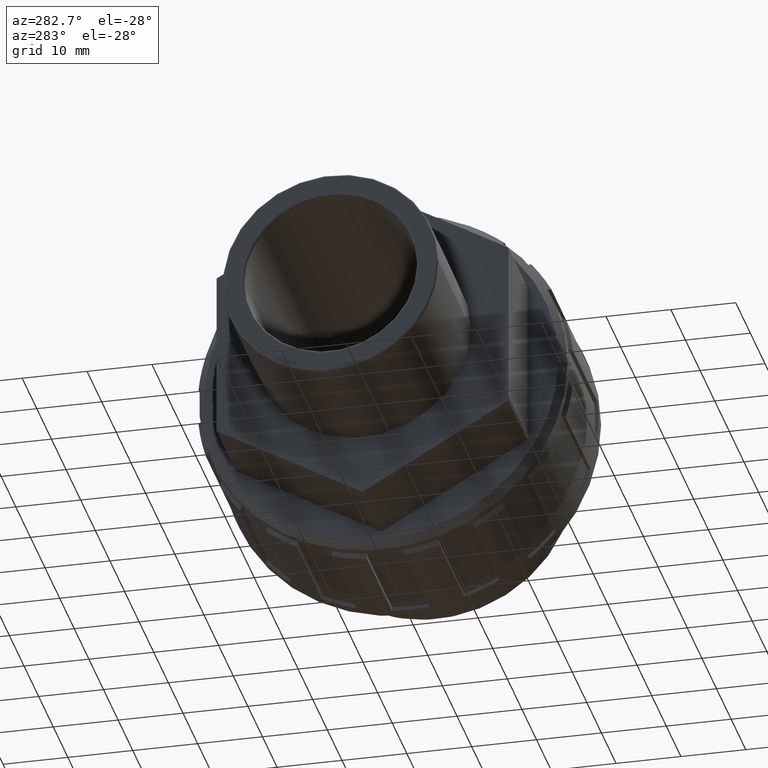
[diagram: clean part render]
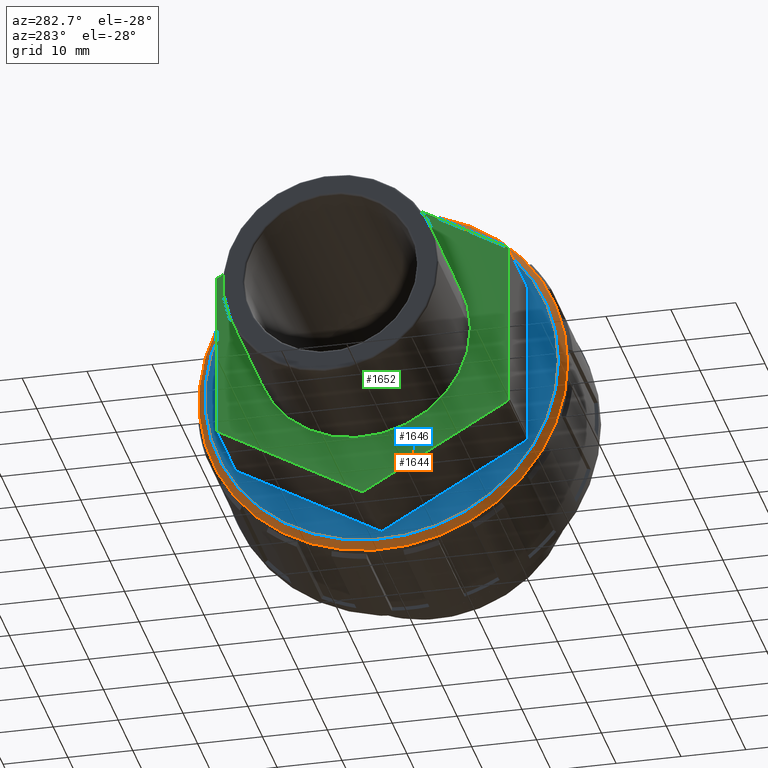
[diagram: same view with three faces highlighted in distinct colors, each labeled with its STEP entity id]
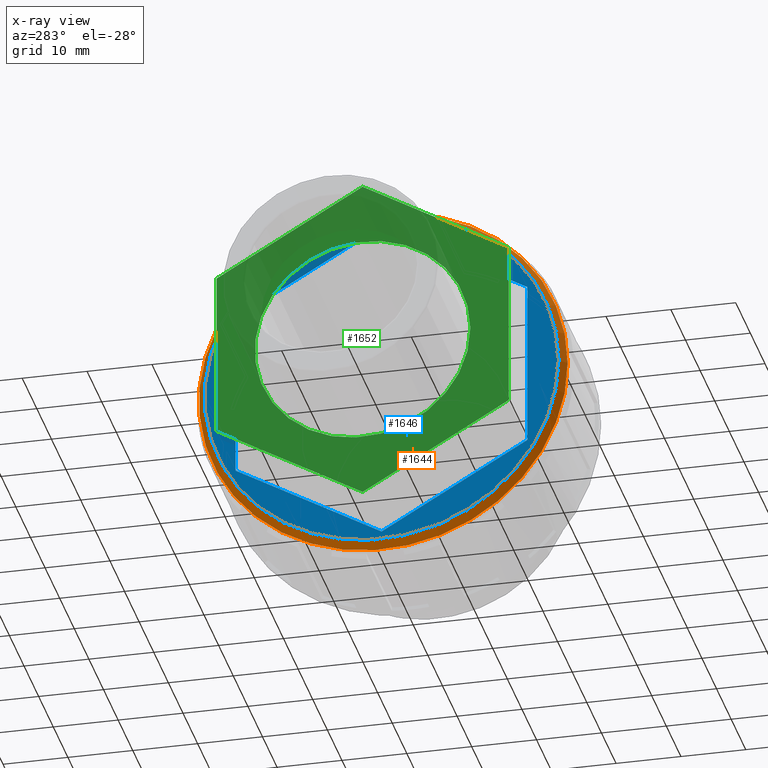
[diagram: x-ray of the same camera — body ghosted, the three highlighted faces saturated]
A machine part, auxiliary view with three faces highlighted in distinct colors.
The next image is the same camera in x-ray (body ghosted, the three faces saturated) — at least one of them is partly hidden behind the body in this view.
Their STEP definitions:

[orange] entity #1644 — the highlighted conical surface has half-angle 45 deg.
#36=CONICAL_SURFACE('',#1816,27.84,45.);
#50=FACE_BOUND('',#340,.T.);
#145=CIRCLE('',#1817,28.42);
#146=CIRCLE('',#1818,27.26);
#234=FACE_OUTER_BOUND('',#339,.T.);
#339=EDGE_LOOP('',(#1408));
#340=EDGE_LOOP('',(#1409));
#803=VERTEX_POINT('',#2794);
#804=VERTEX_POINT('',#2796);
#1033=EDGE_CURVE('',#803,#803,#145,.T.);
#1034=EDGE_CURVE('',#804,#804,#146,.T.);
#1408=ORIENTED_EDGE('',*,*,#1033,.T.);
#1409=ORIENTED_EDGE('',*,*,#1034,.T.);
#1644=ADVANCED_FACE('',(#234,#50),#36,.T.);
#1816=AXIS2_PLACEMENT_3D('',#2793,#2301,#2302);
#1817=AXIS2_PLACEMENT_3D('',#2795,#2303,#2304);
#1818=AXIS2_PLACEMENT_3D('',#2797,#2305,#2306);
#2301=DIRECTION('center_axis',(1.,4.89858719658941E-16,0.));
#2302=DIRECTION('ref_axis',(-4.78434403315402E-16,1.,0.));
#2303=DIRECTION('center_axis',(-1.,-4.89858719658941E-16,0.));
#2304=DIRECTION('ref_axis',(-4.67476385598129E-16,1.,0.));
#2305=DIRECTION('center_axis',(1.,4.89858719658941E-16,0.));
#2306=DIRECTION('ref_axis',(-4.89858719658941E-16,1.,0.));
#2793=CARTESIAN_POINT('Origin',(-1.07,6.20834694827751E-15,0.));
#2794=CARTESIAN_POINT('',(-0.489999999999991,-28.42,3.48044620317678E-15));
#2795=CARTESIAN_POINT('Origin',(-0.490000000000005,6.49246500567969E-15,
0.));
#2796=CARTESIAN_POINT('',(-1.64999999999999,-27.26,-3.33838717447569E-15));
#2797=CARTESIAN_POINT('Origin',(-1.65,5.92422889087532E-15,0.));

[blue] entity #1646 — the highlighted planar face has unit normal (-1, -0, 0).
#52=FACE_BOUND('',#344,.T.);
#146=CIRCLE('',#1818,27.26);
#236=FACE_OUTER_BOUND('',#343,.T.);
#343=EDGE_LOOP('',(#1475));
#344=EDGE_LOOP('',(#1476,#1477,#1478,#1479,#1480,#1481));
#357=LINE('',#2335,#503);
#361=LINE('',#2343,#507);
#364=LINE('',#2350,#510);
#368=LINE('',#2358,#514);
#371=LINE('',#2363,#517);
#373=LINE('',#2366,#519);
#503=VECTOR('',#1835,25.9807621135332);
#507=VECTOR('',#1841,25.9807621135332);
#510=VECTOR('',#1846,25.9807621135332);
#514=VECTOR('',#1852,25.9807621135332);
#517=VECTOR('',#1857,25.9807621135332);
#519=VECTOR('',#1861,25.9807621135332);
#649=VERTEX_POINT('',#2333);
#650=VERTEX_POINT('',#2334);
#653=VERTEX_POINT('',#2342);
#655=VERTEX_POINT('',#2348);
#656=VERTEX_POINT('',#2349);
#659=VERTEX_POINT('',#2357);
#804=VERTEX_POINT('',#2796);
#809=EDGE_CURVE('',#649,#650,#357,.T.);
#813=EDGE_CURVE('',#653,#649,#361,.T.);
#816=EDGE_CURVE('',#655,#656,#364,.T.);
#820=EDGE_CURVE('',#659,#655,#368,.T.);
#823=EDGE_CURVE('',#650,#659,#371,.T.);
#825=EDGE_CURVE('',#656,#653,#373,.T.);
#1034=EDGE_CURVE('',#804,#804,#146,.T.);
#1475=ORIENTED_EDGE('',*,*,#1034,.F.);
#1476=ORIENTED_EDGE('',*,*,#813,.T.);
#1477=ORIENTED_EDGE('',*,*,#809,.T.);
#1478=ORIENTED_EDGE('',*,*,#823,.T.);
#1479=ORIENTED_EDGE('',*,*,#820,.T.);
#1480=ORIENTED_EDGE('',*,*,#816,.T.);
#1481=ORIENTED_EDGE('',*,*,#825,.T.);
#1556=PLANE('',#1820);
#1646=ADVANCED_FACE('',(#236,#52),#1556,.T.);
#1818=AXIS2_PLACEMENT_3D('',#2797,#2305,#2306);
#1820=AXIS2_PLACEMENT_3D('',#2799,#2309,#2310);
#1835=DIRECTION('',(4.24230095489963E-16,-0.866025403784439,-0.499999999999999));
#1841=DIRECTION('',(4.24230095489962E-16,-0.866025403784438,0.500000000000001));
#1846=DIRECTION('',(-4.24230095489963E-16,0.86602540378444,0.499999999999998));
#1852=DIRECTION('',(-4.24230095489962E-16,0.866025403784438,-0.500000000000002));
#1857=DIRECTION('',(7.53584031603017E-31,-1.53837014910685E-15,-1.));
#1861=DIRECTION('',(-7.53584031603016E-31,1.53837014910685E-15,1.));
#2305=DIRECTION('center_axis',(1.,4.89858719658941E-16,0.));
#2306=DIRECTION('ref_axis',(-4.89858719658941E-16,1.,0.));
#2309=DIRECTION('center_axis',(-1.,-4.89858719658941E-16,0.));
#2310=DIRECTION('ref_axis',(0.,0.,1.));
#2333=CARTESIAN_POINT('',(-1.65,4.05805724609366E-14,25.9807621135332));
#2334=CARTESIAN_POINT('',(-1.64999999999999,-22.5,12.9903810567666));
#2335=CARTESIAN_POINT('',(-1.65,-14.0625,17.8617739530541));
#2342=CARTESIAN_POINT('',(-1.65000000000001,22.5,12.9903810567666));
#2343=CARTESIAN_POINT('',(-1.65000000000001,8.43750000000004,21.1093692172457));
#2348=CARTESIAN_POINT('',(-1.65,-4.19847793027488E-14,-25.9807621135332));
#2349=CARTESIAN_POINT('',(-1.65000000000001,22.5,-12.9903810567666));
#2350=CARTESIAN_POINT('',(-1.65,-2.81250000000006,-27.604559745629));
#2357=CARTESIAN_POINT('',(-1.64999999999999,-22.5,-12.9903810567665));
#2358=CARTESIAN_POINT('',(-1.64999999999999,-25.3125,-11.3665834246707));
#2363=CARTESIAN_POINT('',(-1.64999999999999,-22.5,6.49519052838331));
#2366=CARTESIAN_POINT('',(-1.65000000000001,22.5,-5.23768967489066E-14));
#2796=CARTESIAN_POINT('',(-1.64999999999999,-27.26,-3.33838717447569E-15));
#2797=CARTESIAN_POINT('Origin',(-1.65,5.92422889087532E-15,0.));
#2799=CARTESIAN_POINT('Origin',(-1.64999999999999,-22.5,0.));

[green] entity #1652 — the highlighted planar face has unit normal (-1, -0, 0).
#58=FACE_BOUND('',#356,.T.);
#143=CIRCLE('',#1812,16.6245);
#242=FACE_OUTER_BOUND('',#355,.T.);
#355=EDGE_LOOP('',(#1492,#1493,#1494,#1495,#1496,#1497));
#356=EDGE_LOOP('',(#1498));
#359=LINE('',#2339,#505);
#363=LINE('',#2346,#509);
#366=LINE('',#2354,#512);
#370=LINE('',#2361,#516);
#372=LINE('',#2364,#518);
#374=LINE('',#2367,#520);
#505=VECTOR('',#1837,25.9807621135332);
#509=VECTOR('',#1843,25.9807621135332);
#512=VECTOR('',#1848,25.9807621135332);
#516=VECTOR('',#1854,25.9807621135332);
#518=VECTOR('',#1858,25.9807621135332);
#520=VECTOR('',#1862,25.9807621135332);
#651=VERTEX_POINT('',#2336);
#652=VERTEX_POINT('',#2338);
#654=VERTEX_POINT('',#2344);
#657=VERTEX_POINT('',#2351);
#658=VERTEX_POINT('',#2353);
#660=VERTEX_POINT('',#2359);
#801=VERTEX_POINT('',#2785);
#811=EDGE_CURVE('',#651,#652,#359,.T.);
#815=EDGE_CURVE('',#654,#651,#363,.T.);
#818=EDGE_CURVE('',#657,#658,#366,.T.);
#822=EDGE_CURVE('',#660,#657,#370,.T.);
#824=EDGE_CURVE('',#652,#660,#372,.T.);
#826=EDGE_CURVE('',#658,#654,#374,.T.);
#1029=EDGE_CURVE('',#801,#801,#143,.T.);
#1492=ORIENTED_EDGE('',*,*,#811,.F.);
#1493=ORIENTED_EDGE('',*,*,#815,.F.);
#1494=ORIENTED_EDGE('',*,*,#826,.F.);
#1495=ORIENTED_EDGE('',*,*,#818,.F.);
#1496=ORIENTED_EDGE('',*,*,#822,.F.);
#1497=ORIENTED_EDGE('',*,*,#824,.F.);
#1498=ORIENTED_EDGE('',*,*,#1029,.F.);
#1560=PLANE('',#1830);
#1652=ADVANCED_FACE('',(#242,#58),#1560,.T.);
#1812=AXIS2_PLACEMENT_3D('',#2786,#2291,#2292);
#1830=AXIS2_PLACEMENT_3D('',#2813,#2329,#2330);
#1837=DIRECTION('',(4.24230095489963E-16,-0.866025403784439,-0.499999999999999));
#1843=DIRECTION('',(4.24230095489962E-16,-0.866025403784438,0.500000000000001));
#1848=DIRECTION('',(-4.24230095489963E-16,0.86602540378444,0.499999999999998));
#1854=DIRECTION('',(-4.24230095489962E-16,0.866025403784438,-0.500000000000002));
#1858=DIRECTION('',(7.53584031603017E-31,-1.53837014910685E-15,-1.));
#1862=DIRECTION('',(-7.53584031603016E-31,1.53837014910685E-15,1.));
#2291=DIRECTION('center_axis',(-1.,-4.89858719658941E-16,0.));
#2292=DIRECTION('ref_axis',(0.,0.,1.));
#2329=DIRECTION('center_axis',(-1.,-4.89858719658941E-16,0.));
#2330=DIRECTION('ref_axis',(0.,0.,1.));
#2336=CARTESIAN_POINT('',(-14.65,3.46593829962692E-14,25.9807621135332));
#2338=CARTESIAN_POINT('',(-14.65,-22.5,12.9903810567666));
#2339=CARTESIAN_POINT('',(-14.65,3.46593829962692E-14,25.9807621135332));
#2344=CARTESIAN_POINT('',(-14.65,22.5,12.9903810567666));
#2346=CARTESIAN_POINT('',(-14.65,22.5,12.9903810567666));
#2351=CARTESIAN_POINT('',(-14.65,-4.79059687674162E-14,-25.9807621135332));
#2353=CARTESIAN_POINT('',(-14.65,22.5,-12.9903810567666));
#2354=CARTESIAN_POINT('',(-14.65,-4.79059687674162E-14,-25.9807621135332));
#2359=CARTESIAN_POINT('',(-14.65,-22.5,-12.9903810567665));
#2361=CARTESIAN_POINT('',(-14.65,-22.5,-12.9903810567665));
#2364=CARTESIAN_POINT('',(-14.65,-22.5,12.9903810567666));
#2367=CARTESIAN_POINT('',(-14.65,22.5,-12.9903810567666));
#2785=CARTESIAN_POINT('',(-14.65,-16.6245,0.));
#2786=CARTESIAN_POINT('Origin',(-14.65,-4.43934464690915E-16,0.));
#2813=CARTESIAN_POINT('Origin',(-14.65,-16.6245,0.));